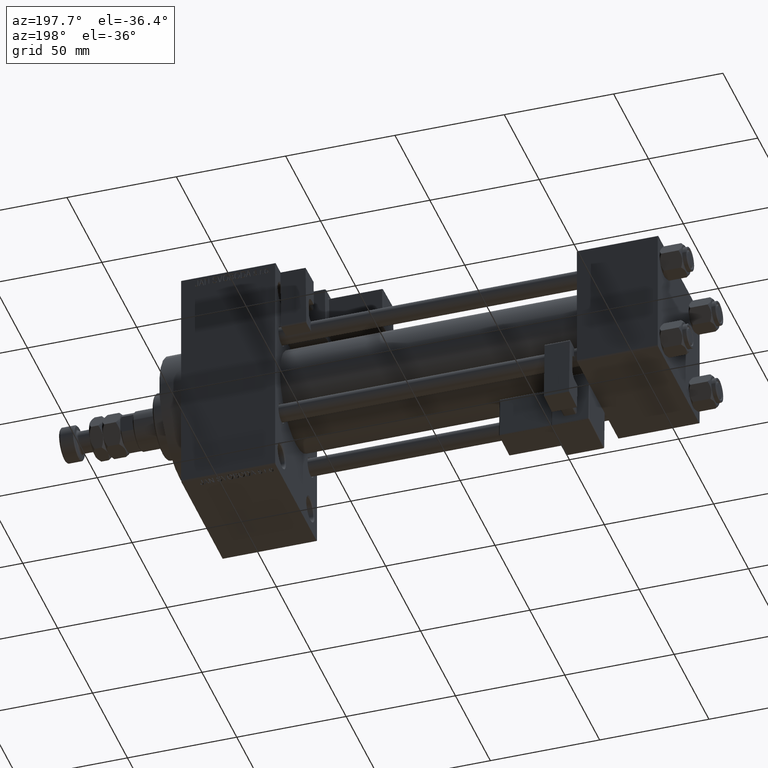
[diagram: clean part render]
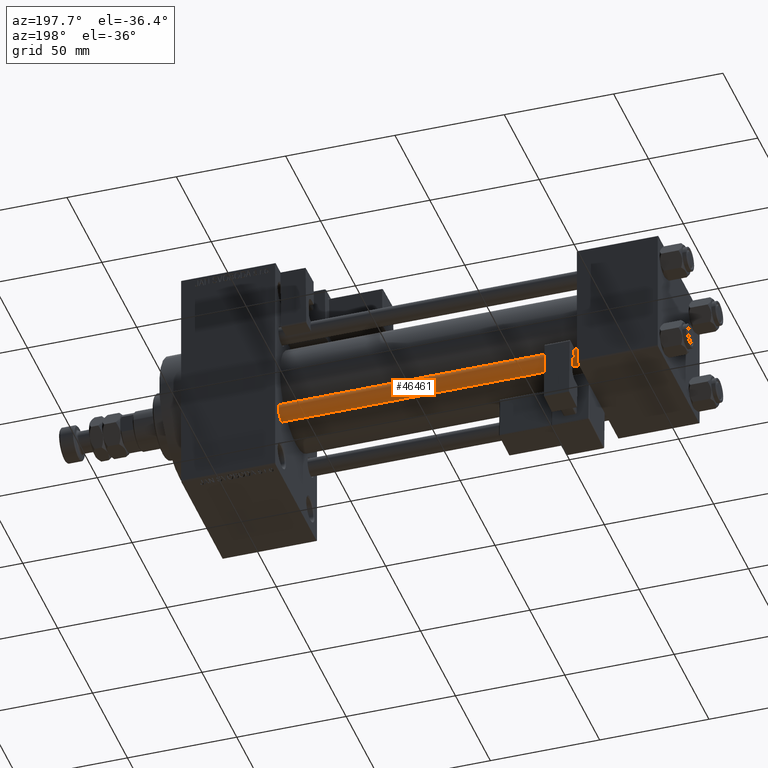
[diagram: same view with one face highlighted and labeled with its STEP entity id]
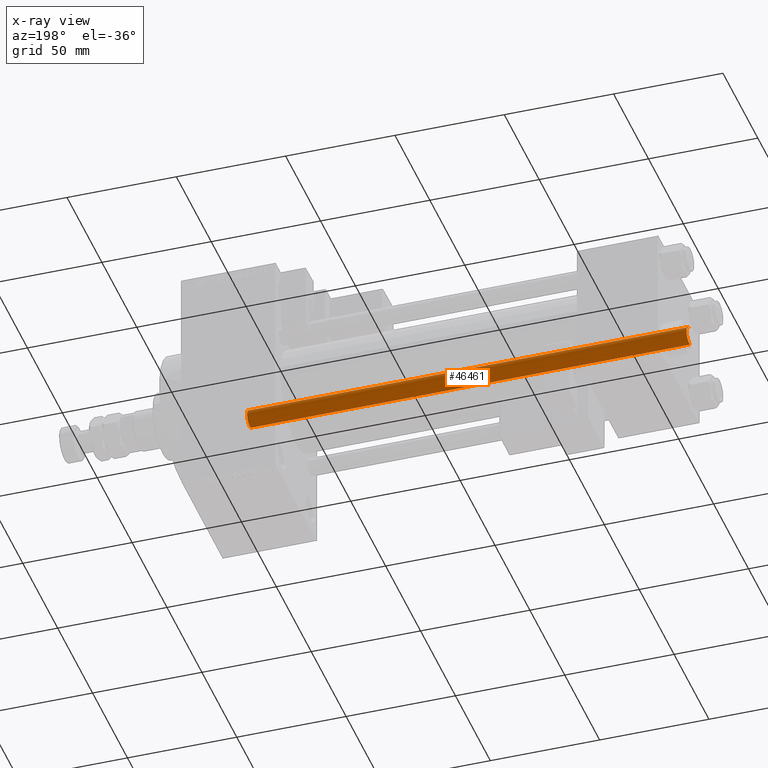
[diagram: x-ray of the same camera — body ghosted, the highlighted face saturated]
A machine part, auxiliary view. The second image highlights one B-rep face of the part: STEP entity #46461.
The next image is the same camera in x-ray: the body ghosted, the highlighted face saturated — about 0% of this face is hidden behind the body in this view.
In plain terms, the highlighted cylindrical surface (edge-blend (fillet) strip) has radius 4 mm, axis along (1, -0, 0).
Its self-contained STEP definition (entity closure, byte-faithful):
#251 = VERTEX_POINT ( 'NONE', #50330 ) ;
#1899 = DIRECTION ( 'NONE',  ( -0.000000000000000000, -0.000000000000000000, -1.000000000000000000 ) ) ;
#2399 = DIRECTION ( 'NONE',  ( 1.000000000000000000, 0.000000000000000000, 0.000000000000000000 ) ) ;
#3761 = CARTESIAN_POINT ( 'NONE',  ( 4.000000000000000000, 4.898587196589412829E-16, 202.0000000000000000 ) ) ;
#5406 = DIRECTION ( 'NONE',  ( -0.000000000000000000, -0.000000000000000000, 1.000000000000000000 ) ) ;
#5552 = DIRECTION ( 'NONE',  ( -1.000000000000000000, 0.000000000000000000, 0.000000000000000000 ) ) ;
#6663 = CIRCLE ( 'NONE', #35628, 4.000000000000000000 ) ;
#8694 = CYLINDRICAL_SURFACE ( 'NONE', #31908, 4.000000000000000000 ) ;
#9108 = CARTESIAN_POINT ( 'NONE',  ( 4.000000000000000000, 4.898587196589412829E-16, 0.5000000000000004441 ) ) ;
#10482 = VERTEX_POINT ( 'NONE', #26228 ) ;
#13446 = DIRECTION ( 'NONE',  ( 1.000000000000000000, 0.000000000000000000, 0.000000000000000000 ) ) ;
#15913 = CIRCLE ( 'NONE', #36593, 4.000000000000000000 ) ;
#15959 = DIRECTION ( 'NONE',  ( -0.000000000000000000, -0.000000000000000000, -1.000000000000000000 ) ) ;
#16660 = VECTOR ( 'NONE', #1899, 1000.000000000000000 ) ;
#16741 = EDGE_CURVE ( 'NONE', #251, #20191, #35647, .T. ) ;
#20191 = VERTEX_POINT ( 'NONE', #9108 ) ;
#21117 = FACE_OUTER_BOUND ( 'NONE', #44842, .T. ) ;
#21475 = CARTESIAN_POINT ( 'NONE',  ( 0.000000000000000000, 0.000000000000000000, 0.5000000000000004441 ) ) ;
#25254 = LINE ( 'NONE', #32518, #16660 ) ;
#26228 = CARTESIAN_POINT ( 'NONE',  ( -4.000000000000000000, 0.000000000000000000, 201.5000000000000000 ) ) ;
#28225 = EDGE_CURVE ( 'NONE', #10482, #251, #15913, .T. ) ;
#28734 = VERTEX_POINT ( 'NONE', #30863 ) ;
#29790 = ORIENTED_EDGE ( 'NONE', *, *, #16741, .T. ) ;
#30161 = DIRECTION ( 'NONE',  ( 0.000000000000000000, 0.000000000000000000, -1.000000000000000000 ) ) ;
#30863 = CARTESIAN_POINT ( 'NONE',  ( -4.000000000000000000, 0.000000000000000000, 0.5000000000000004441 ) ) ;
#31894 = ORIENTED_EDGE ( 'NONE', *, *, #28225, .T. ) ;
#31908 = AXIS2_PLACEMENT_3D ( 'NONE', #44977, #49115, #5552 ) ;
#32518 = CARTESIAN_POINT ( 'NONE',  ( -4.000000000000000000, 0.000000000000000000, 202.0000000000000000 ) ) ;
#32992 = VECTOR ( 'NONE', #15959, 1000.000000000000000 ) ;
#33370 = EDGE_CURVE ( 'NONE', #20191, #28734, #6663, .T. ) ;
#35460 = ORIENTED_EDGE ( 'NONE', *, *, #33370, .T. ) ;
#35628 = AXIS2_PLACEMENT_3D ( 'NONE', #21475, #5406, #13446 ) ;
#35647 = LINE ( 'NONE', #3761, #32992 ) ;
#36593 = AXIS2_PLACEMENT_3D ( 'NONE', #37914, #30161, #2399 ) ;
#37890 = EDGE_CURVE ( 'NONE', #10482, #28734, #25254, .T. ) ;
#37914 = CARTESIAN_POINT ( 'NONE',  ( 0.000000000000000000, 0.000000000000000000, 201.5000000000000000 ) ) ;
#44842 = EDGE_LOOP ( 'NONE', ( #31894, #29790, #35460, #51210 ) ) ;
#44977 = CARTESIAN_POINT ( 'NONE',  ( 0.000000000000000000, 0.000000000000000000, 202.0000000000000000 ) ) ;
#46461 = ADVANCED_FACE ( 'NONE', ( #21117 ), #8694, .T. ) ;
#49115 = DIRECTION ( 'NONE',  ( -0.000000000000000000, -0.000000000000000000, -1.000000000000000000 ) ) ;
#50330 = CARTESIAN_POINT ( 'NONE',  ( 4.000000000000000000, 4.898587196589412829E-16, 201.5000000000000000 ) ) ;
#51210 = ORIENTED_EDGE ( 'NONE', *, *, #37890, .F. ) ;